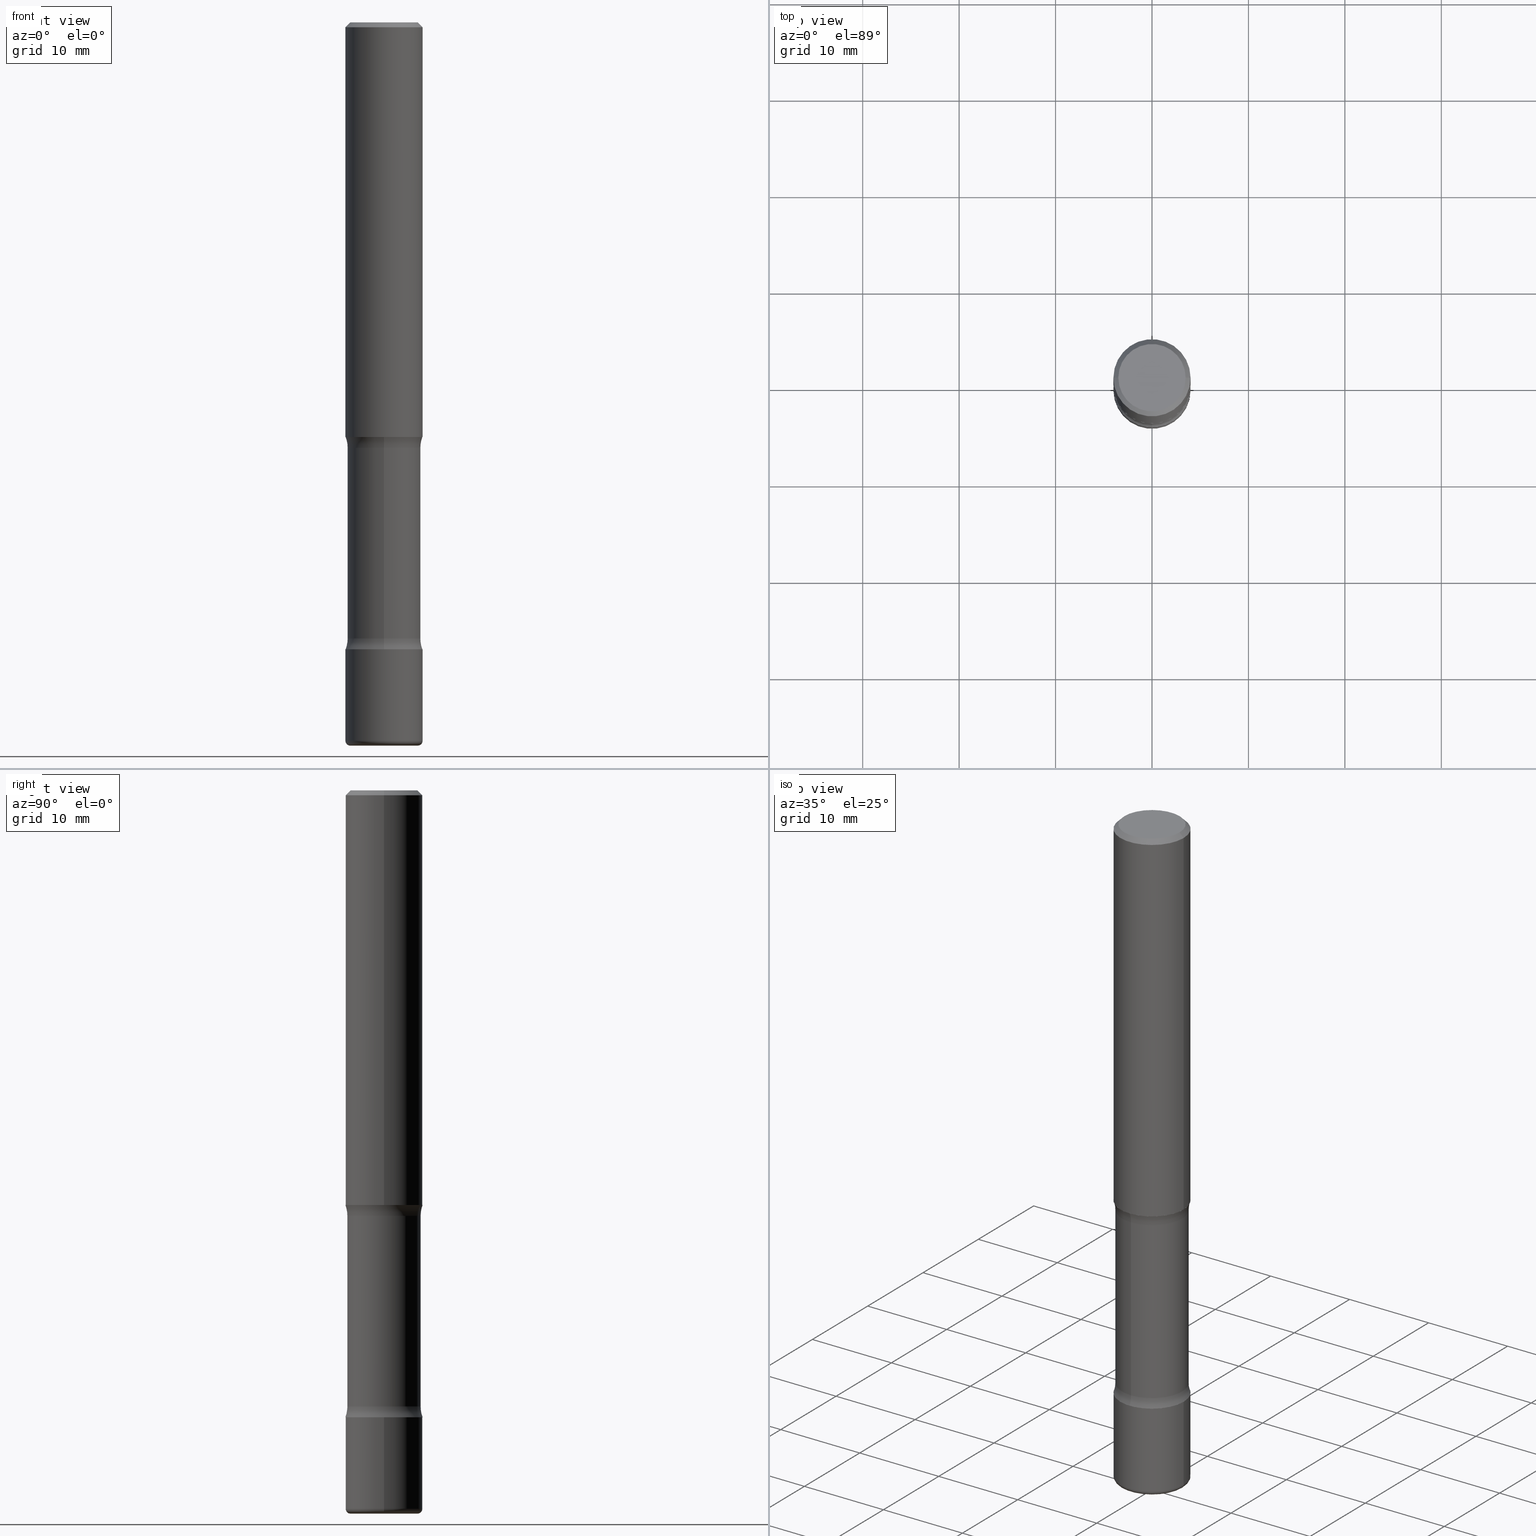
[diagram: canonical four-view strip — front | top / right | iso, engineering-drawing reading convention]
A machine part, canonical four-view strip (front | top / right | iso — engineering-drawing reading convention). The complete STEP part file that produces these views, byte-faithful:
ISO-10303-21;
HEADER;
FILE_DESCRIPTION (( 'STEP AP203' ),
    '1' );
FILE_NAME ('45128.STEP',
    '2024-03-02T04:51:14',
    ( '' ),
    ( '' ),
    'SwSTEP 2.0',
    'SolidWorks 2023',
    '' );
FILE_SCHEMA (( 'CONFIG_CONTROL_DESIGN' ));
ENDSEC;

DATA;
#1 = FACE_OUTER_BOUND ( 'NONE', #257, .T. ) ;
#2 = CARTESIAN_POINT ( 'NONE',  ( 1.099816621735650786E-15, 0.1574999999999912859, -2.559099999999999930 ) ) ;
#3 = APPROVAL ( #294, 'UNSPECIFIED' ) ;
#4 = ORIENTED_EDGE ( 'NONE', *, *, #114, .T. ) ;
#5 = EDGE_CURVE ( 'NONE', #554, #484, #64, .T. ) ;
#6 = FACE_OUTER_BOUND ( 'NONE', #8, .T. ) ;
#7 = VERTEX_POINT ( 'NONE', #22 ) ;
#8 = EDGE_LOOP ( 'NONE', ( #203, #394, #153, #265 ) ) ;
#9 = AXIS2_PLACEMENT_3D ( 'NONE', #160, #38, #344 ) ;
#10 = EDGE_LOOP ( 'NONE', ( #171, #272 ) ) ;
#11 = CYLINDRICAL_SURFACE ( 'NONE', #178, 0.1575000000000001954 ) ;
#12 = APPROVAL ( #387, 'UNSPECIFIED' ) ;
#13 = CARTESIAN_POINT ( 'NONE',  ( 4.702483345758239850E-29, -5.413541035302621061E-15, -1.737000000000000099 ) ) ;
#14 = CARTESIAN_POINT ( 'NONE',  ( 6.174935022236070014E-29, -8.746573565571573705E-15, -2.515099999999998559 ) ) ;
#15 = DATE_AND_TIME ( #400, #342 ) ;
#16 = ORIENTED_EDGE ( 'NONE', *, *, #553, .F. ) ;
#17 = AXIS2_PLACEMENT_3D ( 'NONE', #14, #269, #496 ) ;
#18 = AXIS2_PLACEMENT_3D ( 'NONE', #318, #184, #494 ) ;
#19 = ADVANCED_FACE ( 'NONE', ( #506 ), #458, .F. ) ;
#20 = CARTESIAN_POINT ( 'NONE',  ( 4.890937612370281041E-31, -6.982962677686302702E-17, -0.02000000000000003511 ) ) ;
#21 = ORIENTED_EDGE ( 'NONE', *, *, #90, .T. ) ;
#22 = CARTESIAN_POINT ( 'NONE',  ( -0.1575000000000001676, -1.871348957896993578E-15, -1.692999999999999616 ) ) ;
#23 = DIRECTION ( 'NONE',  ( -2.445468806185136597E-29, 3.491481338843145583E-15, 1.000000000000000000 ) ) ;
#24 = CARTESIAN_POINT ( 'NONE',  ( 4.700843640139236731E-29, -5.415889187075282300E-15, -1.737000000000000099 ) ) ;
#25 = CIRCLE ( 'NONE', #17, 0.1494999999999999940 ) ;
#26 = CC_DESIGN_APPROVAL ( #3, ( #301 ) ) ;
#27 = CARTESIAN_POINT ( 'NONE',  ( -0.1575000000000000844, 1.119104808822158392E-15, -7.747322767151481189E-30 ) ) ;
#28 = PLANE ( 'NONE',  #111 ) ;
#29 = CARTESIAN_POINT ( 'NONE',  ( 6.258199221908381703E-29, -8.935049894233492186E-15, -2.559099999999999486 ) ) ;
#30 = CARTESIAN_POINT ( 'NONE',  ( 0.000000000000000000, 0.000000000000000000, 0.000000000000000000 ) ) ;
#31 =( NAMED_UNIT ( * ) PLANE_ANGLE_UNIT ( ) SI_UNIT ( $, .RADIAN. ) );
#32 = LINE ( 'NONE', #379, #36 ) ;
#33 = DATE_AND_TIME ( #345, #112 ) ;
#34 = AXIS2_PLACEMENT_3D ( 'NONE', #320, #495, #465 ) ;
#35 = EDGE_LOOP ( 'NONE', ( #529, #21, #235, #82 ) ) ;
#36 = VECTOR ( 'NONE', #278, 39.37007874015748143 ) ;
#37 = ADVANCED_FACE ( 'NONE', ( #451 ), #78, .F. ) ;
#38 = DIRECTION ( 'NONE',  ( -2.445468806185136597E-29, 3.491481338843145583E-15, 1.000000000000000000 ) ) ;
#39 = PERSON_AND_ORGANIZATION_ROLE ( 'design_owner' ) ;
#40 = APPLICATION_CONTEXT ( 'configuration controlled 3d designs of mechanical parts and assemblies' ) ;
#41 = FACE_OUTER_BOUND ( 'NONE', #296, .T. ) ;
#42 = CIRCLE ( 'NONE', #326, 0.1250000000000001388 ) ;
#43 = DIRECTION ( 'NONE',  ( 1.892368174370687992E-29, -4.283552924134379994E-15, -1.000000000000000000 ) ) ;
#44 = ORIENTED_EDGE ( 'NONE', *, *, #298, .F. ) ;
#45 = CARTESIAN_POINT ( 'NONE',  ( 7.172804555421624566E-29, -1.024086391496083050E-14, -2.933100000000000041 ) ) ;
#46 = EDGE_CURVE ( 'NONE', #484, #302, #325, .T. ) ;
#47 = PLANE ( 'NONE',  #148 ) ;
#48 = ORIENTED_EDGE ( 'NONE', *, *, #266, .T. ) ;
#49 = MANIFOLD_SOLID_BREP ( 'Body-Move/Copy2[2]', #378 ) ;
#50 = APPLICATION_CONTEXT ( 'configuration controlled 3d designs of mechanical parts and assemblies' ) ;
#52 = ORIENTED_EDGE ( 'NONE', *, *, #550, .T. ) ;
#51 = CARTESIAN_POINT ( 'NONE',  ( 0.1575000000000001954, -1.003486651596908046E-14, -2.559099999999999486 ) ) ;
#53 = CARTESIAN_POINT ( 'NONE',  ( 1.043952920314158531E-15, 0.1494999999999912510, -2.515099999999999003 ) ) ;
#54 = AXIS2_PLACEMENT_3D ( 'NONE', #211, #443, #123 ) ;
#55 = CARTESIAN_POINT ( 'NONE',  ( -1.883206700388223981E-15, -0.2745000000000087925, -2.515099999999997227 ) ) ;
#56 = ADVANCED_FACE ( 'NONE', ( #370 ), #445, .F. ) ;
#57 = MANIFOLD_SOLID_BREP ( 'Body-Move/Copy2[4]', #254 ) ;
#58 = DIRECTION ( 'NONE',  ( -6.982962677686265922E-15, -1.000000000000000000, 0.000000000000000000 ) ) ;
#59 = CARTESIAN_POINT ( 'NONE',  ( 4.890937612370281041E-31, -6.982962677686302702E-17, -0.02000000000000003511 ) ) ;
#60 = APPROVAL_STATUS ( 'not_yet_approved' ) ;
#61 = LINE ( 'NONE', #175, #255 ) ;
#62 = CARTESIAN_POINT ( 'NONE',  ( 0.1575000000000000844, -1.099816621735587677E-15, 7.679978421878603638E-30 ) ) ;
#63 = ORIENTED_EDGE ( 'NONE', *, *, #83, .T. ) ;
#64 = LINE ( 'NONE', #62, #121 ) ;
#65 = CIRCLE ( 'NONE', #189, 0.1249999999999999584 ) ;
#66 = EDGE_LOOP ( 'NONE', ( #136, #391 ) ) ;
#67 = CARTESIAN_POINT ( 'NONE',  ( -1.043851414335219820E-46, 1.490343170380447200E-32, 4.268512490100411279E-18 ) ) ;
#68 = EDGE_LOOP ( 'NONE', ( #354, #96, #142, #333 ) ) ;
#69 = CARTESIAN_POINT ( 'NONE',  ( 0.1575000000000001676, -7.010894528397032856E-15, -1.692999999999999616 ) ) ;
#70 = DIRECTION ( 'NONE',  ( 1.000000000000000000, -6.982962677686265922E-15, 0.000000000000000000 ) ) ;
#71 = DIRECTION ( 'NONE',  ( -6.982962677686266711E-15, -1.000000000000000000, 3.491481338843145583E-15 ) ) ;
#72 = FACE_OUTER_BOUND ( 'NONE', #512, .T. ) ;
#73 = ADVANCED_FACE ( 'NONE', ( #533 ), #94, .T. ) ;
#74 = AXIS2_PLACEMENT_3D ( 'NONE', #238, #279, #419 ) ;
#75 = AXIS2_PLACEMENT_3D ( 'NONE', #264, #447, #117 ) ;
#76 = DIRECTION ( 'NONE',  ( 1.892368174370687992E-29, -4.283552924134379994E-15, -1.000000000000000000 ) ) ;
#77 = EDGE_CURVE ( 'NONE', #396, #88, #282, .T. ) ;
#78 = TOROIDAL_SURFACE ( 'NONE', #388, 0.2744999999999992446, 0.1249999999999999584 ) ;
#79 = TOROIDAL_SURFACE ( 'NONE', #389, 0.2745000000000000218, 0.1250000000000001388 ) ;
#80 = MECHANICAL_CONTEXT ( 'NONE', #50, 'mechanical' ) ;
#81 = LOCAL_TIME ( 23, 51, 14.00000000000000000, #113 ) ;
#82 = ORIENTED_EDGE ( 'NONE', *, *, #525, .F. ) ;
#83 = EDGE_CURVE ( 'NONE', #554, #7, #501, .T. ) ;
#84 = PERSON_AND_ORGANIZATION_ROLE ( 'creator' ) ;
#85 = AXIS2_PLACEMENT_3D ( 'NONE', #158, #480, #429 ) ;
#86 = CARTESIAN_POINT ( 'NONE',  ( -1.043851414335219820E-46, 1.490343170380447200E-32, 4.268512490100411279E-18 ) ) ;
#87 = ORIENTED_EDGE ( 'NONE', *, *, #124, .F. ) ;
#88 = VERTEX_POINT ( 'NONE', #225 ) ;
#89 = FACE_OUTER_BOUND ( 'NONE', #116, .T. ) ;
#90 = EDGE_CURVE ( 'NONE', #383, #351, #220, .T. ) ;
#91 = APPROVAL_ROLE ( '' ) ;
#92 = CARTESIAN_POINT ( 'NONE',  ( -1.883206700388233052E-15, -0.2745000000000046847, -1.736999999999998989 ) ) ;
#93 = CIRCLE ( 'NONE', #85, 0.1250000000000001388 ) ;
#94 = CYLINDRICAL_SURFACE ( 'NONE', #473, 0.1575000000000001954 ) ;
#95 = CARTESIAN_POINT ( 'NONE',  ( -0.1575000000000001954, -8.468852095775002161E-15, -2.559099999999999486 ) ) ;
#96 = ORIENTED_EDGE ( 'NONE', *, *, #287, .T. ) ;
#97 = EDGE_CURVE ( 'NONE', #351, #549, #240, .T. ) ;
#98 = DIRECTION ( 'NONE',  ( 2.445468806185136597E-29, -3.491481338843145583E-15, -1.000000000000000000 ) ) ;
#99 = DIRECTION ( 'NONE',  ( -2.445468806185136597E-29, 3.491481338843145583E-15, 1.000000000000000000 ) ) ;
#100 = CARTESIAN_POINT ( 'NONE',  ( 7.220980290903470182E-29, -1.030964609733603853E-14, -2.952799999999999869 ) ) ;
#101 = DIRECTION ( 'NONE',  ( 1.000000000000000000, -6.982962677686261977E-15, 0.000000000000000000 ) ) ;
#102 = PRODUCT_DEFINITION ( 'UNKNOWN', '', #301, #295 ) ;
#103 = PLANE ( 'NONE',  #74 ) ;
#104 = DIRECTION ( 'NONE',  ( -2.445468806185136597E-29, 3.491481338843145583E-15, 1.000000000000000000 ) ) ;
#105 = CYLINDRICAL_SURFACE ( 'NONE', #418, 0.1575000000000000844 ) ;
#106 = AXIS2_PLACEMENT_3D ( 'NONE', #86, #350, #166 ) ;
#107 = EDGE_CURVE ( 'NONE', #457, #253, #25, .T. ) ;
#108 = FACE_OUTER_BOUND ( 'NONE', #130, .T. ) ;
#109 = VERTEX_POINT ( 'NONE', #237 ) ;
#110 = CLOSED_SHELL ( 'NONE', ( #73, #233, #132, #531, #244, #338 ) ) ;
#111 = AXIS2_PLACEMENT_3D ( 'NONE', #193, #376, #547 ) ;
#112 = LOCAL_TIME ( 23, 51, 14.00000000000000000, #424 ) ;
#113 = COORDINATED_UNIVERSAL_TIME_OFFSET ( 5, 0, .BEHIND. ) ;
#114 = EDGE_CURVE ( 'NONE', #162, #457, #406, .T. ) ;
#115 = PERSON_AND_ORGANIZATION ( #290, #327 ) ;
#116 = EDGE_LOOP ( 'NONE', ( #63, #435, #407, #311 ) ) ;
#118 = ORIENTED_EDGE ( 'NONE', *, *, #441, .T. ) ;
#117 = DIRECTION ( 'NONE',  ( -1.000000000000000000, 6.982962677686265922E-15, -4.876176775795935793E-29 ) ) ;
#119 = CARTESIAN_POINT ( 'NONE',  ( -1.080528434648966278E-15, -0.1575000000000047196, -1.692999999999999172 ) ) ;
#120 = EDGE_LOOP ( 'NONE', ( #87, #210, #322, #509 ) ) ;
#121 = VECTOR ( 'NONE', #176, 39.37007874015748143 ) ;
#122 = AXIS2_PLACEMENT_3D ( 'NONE', #100, #23, #510 ) ;
#123 = DIRECTION ( 'NONE',  ( 1.000000000000000000, -6.982962677686267499E-15, 4.876176775795936353E-29 ) ) ;
#124 = EDGE_CURVE ( 'NONE', #213, #162, #312, .T. ) ;
#125 = CALENDAR_DATE ( 2024, 1, 3 ) ;
#126 = CARTESIAN_POINT ( 'NONE',  ( 1.099816621735629487E-15, 0.1574999999999942557, -1.693000000000000282 ) ) ;
#127 = CIRCLE ( 'NONE', #364, 0.01969999999999991203 ) ;
#128 = CIRCLE ( 'NONE', #341, 0.1574999999999995015 ) ;
#129 = DIRECTION ( 'NONE',  ( -1.000000000000000000, 6.982962677686265922E-15, 0.000000000000000000 ) ) ;
#130 = EDGE_LOOP ( 'NONE', ( #16, #488, #4, #449 ) ) ;
#131 = CARTESIAN_POINT ( 'NONE',  ( 4.702483345758239850E-29, -5.413541035302621061E-15, -1.737000000000000099 ) ) ;
#132 = ADVANCED_FACE ( 'NONE', ( #72 ), #103, .T. ) ;
#133 = ORIENTED_EDGE ( 'NONE', *, *, #107, .T. ) ;
#134 = SECURITY_CLASSIFICATION_LEVEL ( 'unclassified' ) ;
#135 = DIRECTION ( 'NONE',  ( 1.892368174370687992E-29, -4.283552924134379994E-15, -1.000000000000000000 ) ) ;
#136 = ORIENTED_EDGE ( 'NONE', *, *, #266, .F. ) ;
#137 = EDGE_LOOP ( 'NONE', ( #118, #462, #489, #548 ) ) ;
#138 = FACE_OUTER_BOUND ( 'NONE', #68, .T. ) ;
#139 = DIRECTION ( 'NONE',  ( 1.000000000000000000, -6.982962677686267499E-15, 4.876173381029101724E-29 ) ) ;
#140 = AXIS2_PLACEMENT_3D ( 'NONE', #24, #187, #511 ) ;
#141 = AXIS2_PLACEMENT_3D ( 'NONE', #157, #340, #339 ) ;
#142 = ORIENTED_EDGE ( 'NONE', *, *, #154, .T. ) ;
#143 = EDGE_CURVE ( 'NONE', #383, #346, #127, .T. ) ;
#144 = DIRECTION ( 'NONE',  ( -2.445468806185136877E-29, 3.491481338843145188E-15, 1.000000000000000000 ) ) ;
#145 = CARTESIAN_POINT ( 'NONE',  ( 6.174444085162320506E-29, -8.747276615403585415E-15, -2.515099999999998559 ) ) ;
#146 = ORIENTED_EDGE ( 'NONE', *, *, #227, .T. ) ;
#147 = DIRECTION ( 'NONE',  ( 6.982962677686265133E-15, 1.000000000000000000, -3.654646145370252101E-15 ) ) ;
#148 = AXIS2_PLACEMENT_3D ( 'NONE', #555, #252, #475 ) ;
#149 = CARTESIAN_POINT ( 'NONE',  ( -0.1378000000000001724, -9.261736025083411415E-15, -2.933100000000000041 ) ) ;
#150 = AXIS2_PLACEMENT_3D ( 'NONE', #29, #76, #243 ) ;
#151 = CC_DESIGN_PERSON_AND_ORGANIZATION_ASSIGNMENT ( #115, #84, ( #301 ) ) ;
#152 = DIRECTION ( 'NONE',  ( 1.000000000000000000, -6.982962677686267499E-15, 4.876176775795936353E-29 ) ) ;
#153 = ORIENTED_EDGE ( 'NONE', *, *, #518, .T. ) ;
#154 = EDGE_CURVE ( 'NONE', #253, #457, #432, .T. ) ;
#155 = CALENDAR_DATE ( 2024, 1, 3 ) ;
#156 = DIRECTION ( 'NONE',  ( 2.445468806185136597E-29, -3.491481338843145583E-15, -1.000000000000000000 ) ) ;
#157 = CARTESIAN_POINT ( 'NONE',  ( 6.258199221908381703E-29, -8.935049894233492186E-15, -2.559099999999999486 ) ) ;
#158 = CARTESIAN_POINT ( 'NONE',  ( 1.916823255024941869E-15, 0.2744999999999913065, -2.515099999999999447 ) ) ;
#159 = ADVANCED_FACE ( 'NONE', ( #421 ), #105, .T. ) ;
#160 = CARTESIAN_POINT ( 'NONE',  ( 6.258199221908381703E-29, -8.935049894233492186E-15, -2.559099999999999486 ) ) ;
#161 = APPROVAL_ROLE ( '' ) ;
#162 = VERTEX_POINT ( 'NONE', #202 ) ;
#163 = PERSON_AND_ORGANIZATION ( #290, #327 ) ;
#164 = CARTESIAN_POINT ( 'NONE',  ( 0.000000000000000000, 0.000000000000000000, 0.000000000000000000 ) ) ;
#165 = ADVANCED_FACE ( 'NONE', ( #337 ), #288, .T. ) ;
#166 = DIRECTION ( 'NONE',  ( 1.000000000000000000, -6.982962677686267499E-15, 4.876173381029101724E-29 ) ) ;
#167 = AXIS2_PLACEMENT_3D ( 'NONE', #433, #43, #228 ) ;
#168 = APPROVAL_PERSON_ORGANIZATION ( #206, #12, #557 ) ;
#169 = PRODUCT ( '45128', '45128', '', ( #80 ) ) ;
#170 = EDGE_LOOP ( 'NONE', ( #216, #544, #259, #48 ) ) ;
#171 = ORIENTED_EDGE ( 'NONE', *, *, #503, .T. ) ;
#172 = DIRECTION ( 'NONE',  ( 1.000000000000000000, -6.982962677686267499E-15, 4.876176775795935232E-29 ) ) ;
#173 = ORIENTED_EDGE ( 'NONE', *, *, #503, .F. ) ;
#174 = PERSON_AND_ORGANIZATION_ROLE ( 'classification_officer' ) ;
#175 = CARTESIAN_POINT ( 'NONE',  ( 0.1575000000000000011, -1.150358061425879275E-15, -0.02000000000000003511 ) ) ;
#176 = DIRECTION ( 'NONE',  ( -2.445468806185136877E-29, 3.491481338843145188E-15, 1.000000000000000000 ) ) ;
#177 = EDGE_CURVE ( 'NONE', #491, #109, #545, .T. ) ;
#178 = AXIS2_PLACEMENT_3D ( 'NONE', #164, #348, #172 ) ;
#179 = DIRECTION ( 'NONE',  ( -2.445468806185136597E-29, 3.491481338843145583E-15, 1.000000000000000000 ) ) ;
#180 = ORIENTED_EDGE ( 'NONE', *, *, #285, .T. ) ;
#181 = DIRECTION ( 'NONE',  ( 1.892368174370687992E-29, -4.283552924134379994E-15, -1.000000000000000000 ) ) ;
#182 = CARTESIAN_POINT ( 'NONE',  ( -0.1378000000000000891, -9.226138656798647747E-15, -2.952799999999999869 ) ) ;
#183 = DIRECTION ( 'NONE',  ( 1.892368174370687992E-29, -4.283552924134379994E-15, -1.000000000000000000 ) ) ;
#184 = DIRECTION ( 'NONE',  ( -2.445468806185136597E-29, 3.491481338843145583E-15, 1.000000000000000000 ) ) ;
#185 = EDGE_CURVE ( 'NONE', #7, #302, #250, .T. ) ;
#186 = CARTESIAN_POINT ( 'NONE',  ( -0.1575000000000001954, 1.119104808822159181E-15, -7.747322767151486794E-30 ) ) ;
#187 = DIRECTION ( 'NONE',  ( 1.892368174370687992E-29, -4.283552924134379994E-15, -1.000000000000000000 ) ) ;
#188 = AXIS2_PLACEMENT_3D ( 'NONE', #59, #179, #231 ) ;
#189 = AXIS2_PLACEMENT_3D ( 'NONE', #524, #442, #58 ) ;
#190 = CC_DESIGN_APPROVAL ( #214, ( #483 ) ) ;
#191 = CARTESIAN_POINT ( 'NONE',  ( 7.003224572158122372E-29, -1.062148468046519830E-14, -2.952799999999999869 ) ) ;
#192 = ADVANCED_BREP_SHAPE_REPRESENTATION ( '45128', ( #426, #49, #57, #546 ), #336 ) ;
#193 = CARTESIAN_POINT ( 'NONE',  ( 4.140178688871434900E-29, -5.911077906661444587E-15, -1.692999999999999616 ) ) ;
#194 = CC_DESIGN_DATE_AND_TIME_ASSIGNMENT ( #314, #232, ( #483 ) ) ;
#195 = ADVANCED_FACE ( 'NONE', ( #108 ), #286, .T. ) ;
#196 = AXIS2_PLACEMENT_3D ( 'NONE', #513, #104, #507 ) ;
#197 = PERSON_AND_ORGANIZATION_ROLE ( 'design_supplier' ) ;
#198 = APPROVAL_PERSON_ORGANIZATION ( #270, #214, #91 ) ;
#199 = ORIENTED_EDGE ( 'NONE', *, *, #273, .T. ) ;
#200 = APPLICATION_PROTOCOL_DEFINITION ( 'international standard', 'config_control_design', 1994, #50 ) ;
#201 = CC_DESIGN_DATE_AND_TIME_ASSIGNMENT ( #385, #430, ( #102 ) ) ;
#202 = CARTESIAN_POINT ( 'NONE',  ( 1.043952920314138809E-15, 0.1494999999999938878, -1.737000000000000544 ) ) ;
#203 = ORIENTED_EDGE ( 'NONE', *, *, #285, .F. ) ;
#204 = FACE_OUTER_BOUND ( 'NONE', #224, .T. ) ;
#205 = EDGE_CURVE ( 'NONE', #528, #305, #283, .T. ) ;
#206 = PERSON_AND_ORGANIZATION ( #290, #327 ) ;
#207 = DIRECTION ( 'NONE',  ( 6.982962677686265133E-15, 1.000000000000000000, -3.654646145370260778E-15 ) ) ;
#208 = VECTOR ( 'NONE', #538, 39.37007874015748143 ) ;
#209 = AXIS2_PLACEMENT_3D ( 'NONE', #191, #428, #516 ) ;
#210 = ORIENTED_EDGE ( 'NONE', *, *, #347, .T. ) ;
#211 = CARTESIAN_POINT ( 'NONE',  ( 0.000000000000000000, 0.000000000000000000, 0.000000000000000000 ) ) ;
#212 = PERSON_AND_ORGANIZATION ( #290, #327 ) ;
#213 = VERTEX_POINT ( 'NONE', #256 ) ;
#214 = APPROVAL ( #60, 'UNSPECIFIED' ) ;
#215 = DIRECTION ( 'NONE',  ( -2.445468806185136597E-29, 3.491481338843145583E-15, 1.000000000000000000 ) ) ;
#216 = ORIENTED_EDGE ( 'NONE', *, *, #347, .F. ) ;
#217 = DIRECTION ( 'NONE',  ( 1.000000000000000000, -6.860497997771530774E-15, 4.831098800307917727E-29 ) ) ;
#218 = CARTESIAN_POINT ( 'NONE',  ( 7.003224572158122372E-29, -1.062148468046519830E-14, -2.952799999999999869 ) ) ;
#219 = ORIENTED_EDGE ( 'NONE', *, *, #83, .F. ) ;
#220 = CIRCLE ( 'NONE', #542, 0.1378000000000000891 ) ;
#221 = CIRCLE ( 'NONE', #502, 0.1494999999999993001 ) ;
#222 = COORDINATED_UNIVERSAL_TIME_OFFSET ( 5, 0, .BEHIND. ) ;
#223 = CIRCLE ( 'NONE', #150, 0.1575000000000001954 ) ;
#224 = EDGE_LOOP ( 'NONE', ( #229, #52 ) ) ;
#225 = CARTESIAN_POINT ( 'NONE',  ( -0.1374999999999999556, 9.950721815702927302E-16, 4.268512490093574228E-18 ) ) ;
#226 = ORIENTED_EDGE ( 'NONE', *, *, #46, .T. ) ;
#227 = EDGE_CURVE ( 'NONE', #7, #554, #446, .T. ) ;
#228 = DIRECTION ( 'NONE',  ( 6.982962677686266711E-15, 1.000000000000000000, -3.469013325287964337E-15 ) ) ;
#229 = ORIENTED_EDGE ( 'NONE', *, *, #177, .T. ) ;
#230 = CIRCLE ( 'NONE', #167, 0.1574999999999995015 ) ;
#231 = DIRECTION ( 'NONE',  ( 1.000000000000000000, -6.982962677686265922E-15, 0.000000000000000000 ) ) ;
#232 = DATE_TIME_ROLE ( 'classification_date' ) ;
#233 = ADVANCED_FACE ( 'NONE', ( #401 ), #365, .T. ) ;
#234 = DIRECTION ( 'NONE',  ( -2.445468806185136597E-29, 3.491481338843145583E-15, 1.000000000000000000 ) ) ;
#235 = ORIENTED_EDGE ( 'NONE', *, *, #97, .T. ) ;
#236 = CARTESIAN_POINT ( 'NONE',  ( 0.000000000000000000, 0.000000000000000000, 0.000000000000000000 ) ) ;
#237 = CARTESIAN_POINT ( 'NONE',  ( -1.080528434648955234E-15, -0.1575000000000091882, -2.559099999999999042 ) ) ;
#238 = CARTESIAN_POINT ( 'NONE',  ( 7.220980290903470182E-29, -1.030964609733603853E-14, -2.952799999999999869 ) ) ;
#239 = CARTESIAN_POINT ( 'NONE',  ( 0.1575000000000001676, -1.134068053669641877E-14, -2.933100000000000041 ) ) ;
#240 = CIRCLE ( 'NONE', #262, 0.01969999999999991203 ) ;
#241 = CIRCLE ( 'NONE', #552, 0.1575000000000000011 ) ;
#242 = LOCAL_TIME ( 23, 51, 14.00000000000000000, #487 ) ;
#243 = DIRECTION ( 'NONE',  ( 6.982962677686265922E-15, 1.000000000000000000, -3.469013325287948955E-15 ) ) ;
#244 = ADVANCED_FACE ( 'NONE', ( #6 ), #11, .T. ) ;
#245 = CARTESIAN_POINT ( 'NONE',  ( 4.140178688871434900E-29, -5.911077906661444587E-15, -1.692999999999999616 ) ) ;
#246 = AXIS2_PLACEMENT_3D ( 'NONE', #329, #99, #275 ) ;
#247 = CONICAL_SURFACE ( 'NONE', #284, 0.1575000000000000011, 0.7853981633974479459 ) ;
#248 = EDGE_CURVE ( 'NONE', #162, #321, #65, .T. ) ;
#249 = UNCERTAINTY_MEASURE_WITH_UNIT (LENGTH_MEASURE( 1.000000000000000082E-05 ), #504, 'distance_accuracy_value', 'NONE');
#250 = LINE ( 'NONE', #27, #408 ) ;
#251 = ORIENTED_EDGE ( 'NONE', *, *, #273, .F. ) ;
#252 = DIRECTION ( 'NONE',  ( -1.892368174370687712E-29, 4.283552924134379994E-15, 1.000000000000000000 ) ) ;
#253 = VERTEX_POINT ( 'NONE', #532 ) ;
#254 = CLOSED_SHELL ( 'NONE', ( #515, #397, #37, #56, #375, #472, #19, #195 ) ) ;
#255 = VECTOR ( 'NONE', #500, 39.37007874015748143 ) ;
#256 = CARTESIAN_POINT ( 'NONE',  ( -1.053086442657879041E-15, -0.1495000000000047125, -1.736999999999999433 ) ) ;
#257 = EDGE_LOOP ( 'NONE', ( #467, #466 ) ) ;
#258 = EDGE_CURVE ( 'NONE', #508, #321, #230, .T. ) ;
#259 = ORIENTED_EDGE ( 'NONE', *, *, #248, .T. ) ;
#260 = CYLINDRICAL_SURFACE ( 'NONE', #434, 0.1494999999999996332 ) ;
#261 = PRODUCT_DEFINITION_SHAPE ( 'NONE', 'NONE',  #102 ) ;
#262 = AXIS2_PLACEMENT_3D ( 'NONE', #276, #71, #367 ) ;
#263 = CIRCLE ( 'NONE', #313, 0.1575000000000001954 ) ;
#264 = CARTESIAN_POINT ( 'NONE',  ( 6.258199221908381703E-29, -8.935049894233492186E-15, -2.559099999999999486 ) ) ;
#265 = ORIENTED_EDGE ( 'NONE', *, *, #205, .F. ) ;
#266 = EDGE_CURVE ( 'NONE', #321, #508, #128, .T. ) ;
#267 = ORIENTED_EDGE ( 'NONE', *, *, #357, .T. ) ;
#268 = CARTESIAN_POINT ( 'NONE',  ( 6.258199221908381703E-29, -8.935049894233492186E-15, -2.559099999999999486 ) ) ;
#269 = DIRECTION ( 'NONE',  ( 1.892368174370687992E-29, -4.283552924134379994E-15, -1.000000000000000000 ) ) ;
#270 = PERSON_AND_ORGANIZATION ( #290, #327 ) ;
#271 = DIRECTION ( 'NONE',  ( 1.892368174370687992E-29, -4.283552924134379994E-15, -1.000000000000000000 ) ) ;
#272 = ORIENTED_EDGE ( 'NONE', *, *, #77, .T. ) ;
#273 = EDGE_CURVE ( 'NONE', #396, #484, #61, .T. ) ;
#274 = AXIS2_PLACEMENT_3D ( 'NONE', #245, #469, #423 ) ;
#275 = DIRECTION ( 'NONE',  ( 1.000000000000000000, -6.982962677686267499E-15, 0.000000000000000000 ) ) ;
#276 = CARTESIAN_POINT ( 'NONE',  ( 0.1378000000000001724, -1.120311617194599955E-14, -2.933100000000000041 ) ) ;
#277 = ORIENTED_EDGE ( 'NONE', *, *, #453, .F. ) ;
#278 = DIRECTION ( 'NONE',  ( 1.892368174370687992E-29, -4.283552924134379994E-15, -1.000000000000000000 ) ) ;
#279 = DIRECTION ( 'NONE',  ( 2.438088387897960049E-29, -3.491481338843145188E-15, -1.000000000000000000 ) ) ;
#280 = PLANE ( 'NONE',  #274 ) ;
#281 = CARTESIAN_POINT ( 'NONE',  ( 4.890937612370281041E-31, -6.982962677686302702E-17, -0.02000000000000003511 ) ) ;
#282 = CIRCLE ( 'NONE', #534, 0.1374999999999999556 ) ;
#283 = CIRCLE ( 'NONE', #9, 0.1575000000000001954 ) ;
#284 = AXIS2_PLACEMENT_3D ( 'NONE', #20, #98, #129 ) ;
#285 = EDGE_CURVE ( 'NONE', #346, #528, #414, .T. ) ;
#286 = CYLINDRICAL_SURFACE ( 'NONE', #209, 0.1494999999999996332 ) ;
#287 = EDGE_CURVE ( 'NONE', #109, #253, #42, .T. ) ;
#288 = CONICAL_SURFACE ( 'NONE', #474, 0.1575000000000000011, 0.7853981633974479459 ) ;
#289 = EDGE_LOOP ( 'NONE', ( #526, #180, #277, #493 ) ) ;
#290 = PERSON ( 'UNSPECIFIED', 'UNSPECIFIED', 'UNSPECIFIED', ('UNSPECIFIED'), ('UNSPECIFIED'), ('UNSPECIFIED') ) ;
#291 = ORIENTED_EDGE ( 'NONE', *, *, #114, .F. ) ;
#292 = APPROVAL_DATE_TIME ( #522, #12 ) ;
#293 = CARTESIAN_POINT ( 'NONE',  ( 0.1575000000000001954, -1.099816621735588466E-15, 7.679978421878607842E-30 ) ) ;
#294 = APPROVAL_STATUS ( 'not_yet_approved' ) ;
#295 = DESIGN_CONTEXT ( 'detailed design', #40, 'design' ) ;
#296 = EDGE_LOOP ( 'NONE', ( #267, #368, #444, #291 ) ) ;
#297 = DIRECTION ( 'NONE',  ( 1.892368174370687992E-29, -4.283552924134379994E-15, -1.000000000000000000 ) ) ;
#298 = EDGE_CURVE ( 'NONE', #88, #302, #360, .T. ) ;
#299 = ORIENTED_EDGE ( 'NONE', *, *, #298, .T. ) ;
#300 = AXIS2_PLACEMENT_3D ( 'NONE', #308, #438, #490 ) ;
#301 = PRODUCT_DEFINITION_FORMATION_WITH_SPECIFIED_SOURCE ( 'ANY', '', #169, .NOT_KNOWN. ) ;
#302 = VERTEX_POINT ( 'NONE', #527 ) ;
#303 = DIRECTION ( 'NONE',  ( 0.000000000000000000, 0.000000000000000000, 1.000000000000000000 ) ) ;
#305 = VERTEX_POINT ( 'NONE', #51 ) ;
#304 = CARTESIAN_POINT ( 'NONE',  ( -0.1575000000000001676, -9.121759106138672895E-15, -2.933100000000000041 ) ) ;
#306 = EDGE_LOOP ( 'NONE', ( #478, #497, #404, #133 ) ) ;
#307 = CC_DESIGN_PERSON_AND_ORGANIZATION_ASSIGNMENT ( #163, #39, ( #169 ) ) ;
#308 = CARTESIAN_POINT ( 'NONE',  ( 4.140178688871434900E-29, -5.911077906661444587E-15, -1.692999999999999616 ) ) ;
#309 = PLANE ( 'NONE',  #75 ) ;
#310 = EDGE_LOOP ( 'NONE', ( #440, #199, #226, #44 ) ) ;
#311 = ORIENTED_EDGE ( 'NONE', *, *, #5, .F. ) ;
#312 = CIRCLE ( 'NONE', #470, 0.1494999999999993001 ) ;
#313 = AXIS2_PLACEMENT_3D ( 'NONE', #45, #215, #486 ) ;
#314 = DATE_AND_TIME ( #125, #460 ) ;
#315 = CARTESIAN_POINT ( 'NONE',  ( 7.172804555421624566E-29, -1.024086391496083050E-14, -2.933100000000000041 ) ) ;
#316 = DIRECTION ( 'NONE',  ( -2.445468806185136597E-29, 3.491481338843145583E-15, 1.000000000000000000 ) ) ;
#317 = DIRECTION ( 'NONE',  ( -2.445468806185136597E-29, 3.491481338843145583E-15, 1.000000000000000000 ) ) ;
#318 = CARTESIAN_POINT ( 'NONE',  ( 7.172804555421624566E-29, -1.024086391496083050E-14, -2.933100000000000041 ) ) ;
#319 = CARTESIAN_POINT ( 'NONE',  ( 4.619219146085929282E-29, -5.225064706640705735E-15, -1.692999999999999616 ) ) ;
#320 = CARTESIAN_POINT ( 'NONE',  ( 9.601573681818612783E-16, 0.1374999999999999556, -4.779444278458822007E-16 ) ) ;
#321 = VERTEX_POINT ( 'NONE', #126 ) ;
#322 = ORIENTED_EDGE ( 'NONE', *, *, #258, .T. ) ;
#323 = DIRECTION ( 'NONE',  ( 1.000000000000000000, -6.982962677686267499E-15, 4.876176775795935232E-29 ) ) ;
#324 = LENGTH_MEASURE_WITH_UNIT ( LENGTH_MEASURE( 0.02539999999999999897 ), #412 );
#325 = CIRCLE ( 'NONE', #188, 0.1575000000000000011 ) ;
#326 = AXIS2_PLACEMENT_3D ( 'NONE', #55, #349, #355 ) ;
#327 = ORGANIZATION ( 'UNSPECIFIED', 'UNSPECIFIED', '' ) ;
#328 = DIRECTION ( 'NONE',  ( 6.982962677686265922E-15, 1.000000000000000000, -4.283552924134379994E-15 ) ) ;
#329 = CARTESIAN_POINT ( 'NONE',  ( 4.140178688871434900E-29, -5.911077906661444587E-15, -1.692999999999999616 ) ) ;
#330 = DIRECTION ( 'NONE',  ( 1.892368174370687992E-29, -4.283552924134379994E-15, -1.000000000000000000 ) ) ;
#331 = DIRECTION ( 'NONE',  ( -1.000000000000000000, 7.105427357600959260E-15, 0.000000000000000000 ) ) ;
#332 = ADVANCED_FACE ( 'NONE', ( #89 ), #353, .T. ) ;
#333 = ORIENTED_EDGE ( 'NONE', *, *, #485, .F. ) ;
#334 = AXIS2_PLACEMENT_3D ( 'NONE', #471, #377, #147 ) ;
#335 = TOROIDAL_SURFACE ( 'NONE', #196, 0.1378000000000001724, 0.01969999999999990509 ) ;
#336 =( GEOMETRIC_REPRESENTATION_CONTEXT ( 3 ) GLOBAL_UNCERTAINTY_ASSIGNED_CONTEXT ( ( #249 ) ) GLOBAL_UNIT_ASSIGNED_CONTEXT ( ( #504, #31, #463 ) ) REPRESENTATION_CONTEXT ( 'NONE', 'WORKASPACE' ) );
#337 = FACE_OUTER_BOUND ( 'NONE', #310, .T. ) ;
#338 = ADVANCED_FACE ( 'NONE', ( #1 ), #309, .F. ) ;
#339 = DIRECTION ( 'NONE',  ( 6.982962677686265922E-15, 1.000000000000000000, -3.469013325287948955E-15 ) ) ;
#340 = DIRECTION ( 'NONE',  ( 1.892368174370687992E-29, -4.283552924134379994E-15, -1.000000000000000000 ) ) ;
#341 = AXIS2_PLACEMENT_3D ( 'NONE', #319, #181, #359 ) ;
#342 = LOCAL_TIME ( 23, 51, 14.00000000000000000, #222 ) ;
#343 = PRODUCT_RELATED_PRODUCT_CATEGORY ( 'detail', '', ( #169 ) ) ;
#344 = DIRECTION ( 'NONE',  ( 1.000000000000000000, -6.982962677686265922E-15, 0.000000000000000000 ) ) ;
#345 = CALENDAR_DATE ( 2024, 1, 3 ) ;
#346 = VERTEX_POINT ( 'NONE', #304 ) ;
#347 = EDGE_CURVE ( 'NONE', #213, #508, #492, .T. ) ;
#348 = DIRECTION ( 'NONE',  ( -2.445468806185136597E-29, 3.491481338843145583E-15, 1.000000000000000000 ) ) ;
#349 = DIRECTION ( 'NONE',  ( 1.000000000000000000, -6.860497997771530774E-15, 4.831098800307917727E-29 ) ) ;
#350 = DIRECTION ( 'NONE',  ( -2.445468806185136597E-29, 3.491481338843145583E-15, 1.000000000000000000 ) ) ;
#351 = VERTEX_POINT ( 'NONE', #403 ) ;
#352 = CALENDAR_DATE ( 2024, 1, 3 ) ;
#353 = CYLINDRICAL_SURFACE ( 'NONE', #54, 0.1575000000000000844 ) ;
#354 = ORIENTED_EDGE ( 'NONE', *, *, #550, .F. ) ;
#355 = DIRECTION ( 'NONE',  ( 6.860497997771530774E-15, 1.000000000000000000, 0.000000000000000000 ) ) ;
#356 = EDGE_LOOP ( 'NONE', ( #411, #146, #439, #452 ) ) ;
#357 = EDGE_CURVE ( 'NONE', #162, #213, #221, .T. ) ;
#358 = COORDINATED_UNIVERSAL_TIME_OFFSET ( 5, 0, .BEHIND. ) ;
#359 = DIRECTION ( 'NONE',  ( 6.982962677686266711E-15, 1.000000000000000000, -3.469013325287964337E-15 ) ) ;
#360 = LINE ( 'NONE', #530, #380 ) ;
#361 = EDGE_LOOP ( 'NONE', ( #251, #173, #299, #556 ) ) ;
#362 = DIRECTION ( 'NONE',  ( -2.445468806185136597E-29, 3.491481338843145583E-15, 1.000000000000000000 ) ) ;
#363 = DIRECTION ( 'NONE',  ( 1.892368174370687992E-29, -4.283552924134379994E-15, -1.000000000000000000 ) ) ;
#364 = AXIS2_PLACEMENT_3D ( 'NONE', #149, #382, #331 ) ;
#365 = TOROIDAL_SURFACE ( 'NONE', #425, 0.1378000000000001724, 0.01969999999999990509 ) ;
#366 = FACE_OUTER_BOUND ( 'NONE', #10, .T. ) ;
#367 = DIRECTION ( 'NONE',  ( 1.000000000000000000, -6.982962677686260400E-15, 0.000000000000000000 ) ) ;
#368 = ORIENTED_EDGE ( 'NONE', *, *, #553, .T. ) ;
#369 = CARTESIAN_POINT ( 'NONE',  ( 0.1374999999999999556, -1.046838268059732294E-15, 4.268512490107428597E-18 ) ) ;
#370 = FACE_OUTER_BOUND ( 'NONE', #170, .T. ) ;
#371 = ADVANCED_FACE ( 'NONE', ( #366 ), #537, .F. ) ;
#372 = DIRECTION ( 'NONE',  ( 6.982962677686265922E-15, 1.000000000000000000, -4.283552924134379994E-15 ) ) ;
#373 = AXIS2_PLACEMENT_3D ( 'NONE', #92, #217, #395 ) ;
#374 = CARTESIAN_POINT ( 'NONE',  ( 6.174444085162320506E-29, -8.747276615403585415E-15, -2.515099999999998559 ) ) ;
#375 = ADVANCED_FACE ( 'NONE', ( #455 ), #28, .F. ) ;
#376 = DIRECTION ( 'NONE',  ( 1.892368174370687712E-29, -4.283552924134379994E-15, -1.000000000000000000 ) ) ;
#377 = DIRECTION ( 'NONE',  ( 1.892368174370687992E-29, -4.283552924134379994E-15, -1.000000000000000000 ) ) ;
#378 = CLOSED_SHELL ( 'NONE', ( #332, #165, #381, #371, #541, #159 ) ) ;
#379 = CARTESIAN_POINT ( 'NONE',  ( -1.025644450666771294E-15, -0.1495000000000102358, -2.952799999999998981 ) ) ;
#380 = VECTOR ( 'NONE', #390, 39.37007874015748143 ) ;
#381 = ADVANCED_FACE ( 'NONE', ( #410 ), #247, .T. ) ;
#382 = DIRECTION ( 'NONE',  ( 7.105427357601001859E-15, 1.000000000000000000, -3.491481338843145583E-15 ) ) ;
#383 = VERTEX_POINT ( 'NONE', #182 ) ;
#384 = CARTESIAN_POINT ( 'NONE',  ( 0.1575000000000000011, -1.150358061425879275E-15, -0.02000000000000003511 ) ) ;
#385 = DATE_AND_TIME ( #155, #242 ) ;
#386 = CC_DESIGN_PERSON_AND_ORGANIZATION_ASSIGNMENT ( #212, #197, ( #301 ) ) ;
#387 = APPROVAL_STATUS ( 'not_yet_approved' ) ;
#388 = AXIS2_PLACEMENT_3D ( 'NONE', #456, #183, #413 ) ;
#389 = AXIS2_PLACEMENT_3D ( 'NONE', #145, #135, #328 ) ;
#391 = ORIENTED_EDGE ( 'NONE', *, *, #258, .F. ) ;
#390 = DIRECTION ( 'NONE',  ( -0.7071067811865472397, 2.468850131082253905E-15, -0.7071067811865477948 ) ) ;
#392 = APPLICATION_PROTOCOL_DEFINITION ( 'international standard', 'config_control_design', 1994, #40 ) ;
#393 = DIRECTION ( 'NONE',  ( 1.000000000000000000, -6.982962677686269866E-15, 4.883557194083114022E-29 ) ) ;
#394 = ORIENTED_EDGE ( 'NONE', *, *, #525, .T. ) ;
#396 = VERTEX_POINT ( 'NONE', #369 ) ;
#395 = DIRECTION ( 'NONE',  ( 6.860497997771531562E-15, 1.000000000000000000, 0.000000000000000000 ) ) ;
#397 = ADVANCED_FACE ( 'NONE', ( #138 ), #79, .F. ) ;
#398 = AXIS2_PLACEMENT_3D ( 'NONE', #268, #450, #427 ) ;
#399 = EDGE_LOOP ( 'NONE', ( #219, #437 ) ) ;
#400 = CALENDAR_DATE ( 2024, 1, 3 ) ;
#401 = FACE_OUTER_BOUND ( 'NONE', #137, .T. ) ;
#402 = ORIENTED_EDGE ( 'NONE', *, *, #90, .F. ) ;
#403 = CARTESIAN_POINT ( 'NONE',  ( 0.1378000000000000891, -1.127189835432120600E-14, -2.952799999999999869 ) ) ;
#404 = ORIENTED_EDGE ( 'NONE', *, *, #485, .T. ) ;
#405 = PERSON_AND_ORGANIZATION_ROLE ( 'creator' ) ;
#406 = LINE ( 'NONE', #415, #208 ) ;
#407 = ORIENTED_EDGE ( 'NONE', *, *, #46, .F. ) ;
#408 = VECTOR ( 'NONE', #517, 39.37007874015748143 ) ;
#409 = SHAPE_DEFINITION_REPRESENTATION ( #261, #192 ) ;
#410 = FACE_OUTER_BOUND ( 'NONE', #361, .T. ) ;
#411 = ORIENTED_EDGE ( 'NONE', *, *, #185, .F. ) ;
#412 =( LENGTH_UNIT ( ) NAMED_UNIT ( * ) SI_UNIT ( $, .METRE. ) );
#413 = DIRECTION ( 'NONE',  ( 6.982962677686265922E-15, 1.000000000000000000, -4.283552924134379994E-15 ) ) ;
#414 = LINE ( 'NONE', #186, #536 ) ;
#415 = CARTESIAN_POINT ( 'NONE',  ( 1.043952920314164053E-15, 0.1494999999999890028, -2.952800000000000313 ) ) ;
#416 = FACE_OUTER_BOUND ( 'NONE', #399, .T. ) ;
#417 = EDGE_CURVE ( 'NONE', #302, #484, #241, .T. ) ;
#418 = AXIS2_PLACEMENT_3D ( 'NONE', #30, #551, #152 ) ;
#419 = DIRECTION ( 'NONE',  ( -1.000000000000000000, 6.982962677686265922E-15, -4.876176775795935793E-29 ) ) ;
#420 = FACE_OUTER_BOUND ( 'NONE', #35, .T. ) ;
#421 = FACE_OUTER_BOUND ( 'NONE', #356, .T. ) ;
#422 = CC_DESIGN_PERSON_AND_ORGANIZATION_ASSIGNMENT ( #498, #174, ( #483 ) ) ;
#423 = DIRECTION ( 'NONE',  ( 1.000000000000000000, -6.982962677686265922E-15, 4.876176775795935793E-29 ) ) ;
#424 = COORDINATED_UNIVERSAL_TIME_OFFSET ( 5, 0, .BEHIND. ) ;
#425 = AXIS2_PLACEMENT_3D ( 'NONE', #315, #362, #393 ) ;
#426 = MANIFOLD_SOLID_BREP ( 'Body-Move/Copy2[1]', #110 ) ;
#427 = DIRECTION ( 'NONE',  ( 1.000000000000000000, -6.982962677686265922E-15, 0.000000000000000000 ) ) ;
#428 = DIRECTION ( 'NONE',  ( 1.892368174370687992E-29, -4.283552924134379994E-15, -1.000000000000000000 ) ) ;
#429 = DIRECTION ( 'NONE',  ( -6.982962677686265922E-15, -1.000000000000000000, 0.000000000000000000 ) ) ;
#430 = DATE_TIME_ROLE ( 'creation_date' ) ;
#431 = PERSON_AND_ORGANIZATION ( #290, #327 ) ;
#432 = CIRCLE ( 'NONE', #334, 0.1494999999999999940 ) ;
#433 = CARTESIAN_POINT ( 'NONE',  ( 4.619219146085929282E-29, -5.225064706640705735E-15, -1.692999999999999616 ) ) ;
#434 = AXIS2_PLACEMENT_3D ( 'NONE', #218, #297, #207 ) ;
#435 = ORIENTED_EDGE ( 'NONE', *, *, #185, .T. ) ;
#436 = APPROVAL_PERSON_ORGANIZATION ( #560, #3, #161 ) ;
#437 = ORIENTED_EDGE ( 'NONE', *, *, #227, .F. ) ;
#438 = DIRECTION ( 'NONE',  ( -2.445468806185136597E-29, 3.491481338843145583E-15, 1.000000000000000000 ) ) ;
#439 = ORIENTED_EDGE ( 'NONE', *, *, #5, .T. ) ;
#440 = ORIENTED_EDGE ( 'NONE', *, *, #77, .F. ) ;
#441 = EDGE_CURVE ( 'NONE', #351, #383, #519, .T. ) ;
#442 = DIRECTION ( 'NONE',  ( -1.000000000000000000, 6.982962677686265922E-15, -4.883557194083112340E-29 ) ) ;
#444 = ORIENTED_EDGE ( 'NONE', *, *, #107, .F. ) ;
#443 = DIRECTION ( 'NONE',  ( -2.445468806185136597E-29, 3.491481338843145583E-15, 1.000000000000000000 ) ) ;
#445 = TOROIDAL_SURFACE ( 'NONE', #140, 0.2744999999999992446, 0.1249999999999999584 ) ;
#446 = CIRCLE ( 'NONE', #300, 0.1575000000000001676 ) ;
#447 = DIRECTION ( 'NONE',  ( 2.438088387897960049E-29, -3.491481338843145188E-15, -1.000000000000000000 ) ) ;
#448 = DIRECTION ( 'NONE',  ( -2.445468806185136597E-29, 3.491481338843145583E-15, 1.000000000000000000 ) ) ;
#449 = ORIENTED_EDGE ( 'NONE', *, *, #154, .F. ) ;
#450 = DIRECTION ( 'NONE',  ( -2.445468806185136597E-29, 3.491481338843145583E-15, 1.000000000000000000 ) ) ;
#451 = FACE_OUTER_BOUND ( 'NONE', #120, .T. ) ;
#452 = ORIENTED_EDGE ( 'NONE', *, *, #417, .F. ) ;
#453 = EDGE_CURVE ( 'NONE', #305, #528, #459, .T. ) ;
#454 = APPROVAL_DATE_TIME ( #15, #214 ) ;
#455 = FACE_OUTER_BOUND ( 'NONE', #66, .T. ) ;
#456 = CARTESIAN_POINT ( 'NONE',  ( 4.700843640139236731E-29, -5.415889187075282300E-15, -1.737000000000000099 ) ) ;
#457 = VERTEX_POINT ( 'NONE', #53 ) ;
#458 = TOROIDAL_SURFACE ( 'NONE', #523, 0.2745000000000000218, 0.1250000000000001388 ) ;
#459 = CIRCLE ( 'NONE', #398, 0.1575000000000001954 ) ;
#460 = LOCAL_TIME ( 23, 51, 14.00000000000000000, #358 ) ;
#461 = CARTESIAN_POINT ( 'NONE',  ( 7.220980290903470182E-29, -1.030964609733603853E-14, -2.952799999999999869 ) ) ;
#462 = ORIENTED_EDGE ( 'NONE', *, *, #143, .T. ) ;
#463 =( NAMED_UNIT ( * ) SI_UNIT ( $, .STERADIAN. ) SOLID_ANGLE_UNIT ( ) );
#464 = EDGE_CURVE ( 'NONE', #549, #346, #263, .T. ) ;
#465 = DIRECTION ( 'NONE',  ( -1.000000000000000000, 6.982962677686265922E-15, -4.876176775795935793E-29 ) ) ;
#466 = ORIENTED_EDGE ( 'NONE', *, *, #205, .T. ) ;
#467 = ORIENTED_EDGE ( 'NONE', *, *, #453, .T. ) ;
#468 = DIRECTION ( 'NONE',  ( 6.982962677686264344E-15, 1.000000000000000000, -3.654646145370268667E-15 ) ) ;
#469 = DIRECTION ( 'NONE',  ( -2.438088387897960049E-29, 3.491481338843145188E-15, 1.000000000000000000 ) ) ;
#470 = AXIS2_PLACEMENT_3D ( 'NONE', #131, #271, #468 ) ;
#471 = CARTESIAN_POINT ( 'NONE',  ( 6.174935022236070014E-29, -8.746573565571573705E-15, -2.515099999999998559 ) ) ;
#472 = ADVANCED_FACE ( 'NONE', ( #204 ), #47, .F. ) ;
#473 = AXIS2_PLACEMENT_3D ( 'NONE', #540, #317, #323 ) ;
#474 = AXIS2_PLACEMENT_3D ( 'NONE', #281, #156, #476 ) ;
#475 = DIRECTION ( 'NONE',  ( -6.982962677686265922E-15, -1.000000000000000000, 4.283552924134379994E-15 ) ) ;
#476 = DIRECTION ( 'NONE',  ( -1.000000000000000000, 6.982962677686265922E-15, 0.000000000000000000 ) ) ;
#477 = CC_DESIGN_PERSON_AND_ORGANIZATION_ASSIGNMENT ( #431, #405, ( #102 ) ) ;
#478 = ORIENTED_EDGE ( 'NONE', *, *, #287, .F. ) ;
#479 = DIRECTION ( 'NONE',  ( 6.982962677686264344E-15, 1.000000000000000000, -3.654646145370268667E-15 ) ) ;
#480 = DIRECTION ( 'NONE',  ( -1.000000000000000000, 6.982962677686265922E-15, -4.883557194083112340E-29 ) ) ;
#481 = DIRECTION ( 'NONE',  ( 1.000000000000000000, 0.000000000000000000, 0.000000000000000000 ) ) ;
#482 = DIRECTION ( 'NONE',  ( -2.445468806185136877E-29, 3.491481338843145188E-15, 1.000000000000000000 ) ) ;
#483 = SECURITY_CLASSIFICATION ( '', '', #134 ) ;
#484 = VERTEX_POINT ( 'NONE', #384 ) ;
#485 = EDGE_CURVE ( 'NONE', #491, #457, #93, .T. ) ;
#486 = DIRECTION ( 'NONE',  ( 1.000000000000000000, -6.982962677686265922E-15, 0.000000000000000000 ) ) ;
#487 = COORDINATED_UNIVERSAL_TIME_OFFSET ( 5, 0, .BEHIND. ) ;
#488 = ORIENTED_EDGE ( 'NONE', *, *, #124, .T. ) ;
#489 = ORIENTED_EDGE ( 'NONE', *, *, #464, .F. ) ;
#490 = DIRECTION ( 'NONE',  ( 1.000000000000000000, -6.982962677686267499E-15, 0.000000000000000000 ) ) ;
#491 = VERTEX_POINT ( 'NONE', #2 ) ;
#492 = CIRCLE ( 'NONE', #373, 0.1249999999999999584 ) ;
#493 = ORIENTED_EDGE ( 'NONE', *, *, #518, .F. ) ;
#494 = DIRECTION ( 'NONE',  ( 1.000000000000000000, -6.982962677686265922E-15, 0.000000000000000000 ) ) ;
#495 = DIRECTION ( 'NONE',  ( 2.438088387897960049E-29, -3.491481338843145188E-15, -1.000000000000000000 ) ) ;
#496 = DIRECTION ( 'NONE',  ( 6.982962677686265133E-15, 1.000000000000000000, -3.654646145370252101E-15 ) ) ;
#497 = ORIENTED_EDGE ( 'NONE', *, *, #177, .F. ) ;
#498 = PERSON_AND_ORGANIZATION ( #290, #327 ) ;
#499 = ORIENTED_EDGE ( 'NONE', *, *, #441, .F. ) ;
#500 = DIRECTION ( 'NONE',  ( 0.7071067811865472397, -7.319954787623254468E-15, -0.7071067811865477948 ) ) ;
#501 = CIRCLE ( 'NONE', #246, 0.1575000000000001676 ) ;
#502 = AXIS2_PLACEMENT_3D ( 'NONE', #13, #363, #479 ) ;
#503 = EDGE_CURVE ( 'NONE', #88, #396, #558, .T. ) ;
#504 =( CONVERSION_BASED_UNIT ( 'INCH', #324 ) LENGTH_UNIT ( ) NAMED_UNIT ( #543 ) );
#505 = CC_DESIGN_SECURITY_CLASSIFICATION ( #483, ( #301 ) ) ;
#506 = FACE_OUTER_BOUND ( 'NONE', #306, .T. ) ;
#507 = DIRECTION ( 'NONE',  ( 1.000000000000000000, -6.982962677686269866E-15, 4.883557194083114022E-29 ) ) ;
#508 = VERTEX_POINT ( 'NONE', #119 ) ;
#509 = ORIENTED_EDGE ( 'NONE', *, *, #248, .F. ) ;
#510 = DIRECTION ( 'NONE',  ( 1.000000000000000000, -6.982962677686261977E-15, 0.000000000000000000 ) ) ;
#511 = DIRECTION ( 'NONE',  ( 6.982962677686265922E-15, 1.000000000000000000, -4.283552924134379994E-15 ) ) ;
#512 = EDGE_LOOP ( 'NONE', ( #499, #402 ) ) ;
#513 = CARTESIAN_POINT ( 'NONE',  ( 7.172804555421624566E-29, -1.024086391496083050E-14, -2.933100000000000041 ) ) ;
#514 = CIRCLE ( 'NONE', #18, 0.1575000000000001954 ) ;
#515 = ADVANCED_FACE ( 'NONE', ( #41 ), #260, .T. ) ;
#516 = DIRECTION ( 'NONE',  ( 6.982962677686265133E-15, 1.000000000000000000, -3.654646145370260778E-15 ) ) ;
#517 = DIRECTION ( 'NONE',  ( -2.445468806185136877E-29, 3.491481338843145188E-15, 1.000000000000000000 ) ) ;
#518 = EDGE_CURVE ( 'NONE', #549, #305, #559, .T. ) ;
#519 = CIRCLE ( 'NONE', #122, 0.1378000000000000891 ) ;
#520 = CC_DESIGN_APPROVAL ( #12, ( #102 ) ) ;
#521 = APPROVAL_DATE_TIME ( #33, #3 ) ;
#522 = DATE_AND_TIME ( #352, #81 ) ;
#523 = AXIS2_PLACEMENT_3D ( 'NONE', #374, #330, #372 ) ;
#524 = CARTESIAN_POINT ( 'NONE',  ( 1.916823255024921753E-15, 0.2744999999999938045, -1.737000000000001210 ) ) ;
#525 = EDGE_CURVE ( 'NONE', #346, #549, #514, .T. ) ;
#526 = ORIENTED_EDGE ( 'NONE', *, *, #464, .T. ) ;
#527 = CARTESIAN_POINT ( 'NONE',  ( -0.1575000000000000011, 1.029986994958723985E-15, -0.02000000000000003511 ) ) ;
#528 = VERTEX_POINT ( 'NONE', #95 ) ;
#529 = ORIENTED_EDGE ( 'NONE', *, *, #143, .F. ) ;
#530 = CARTESIAN_POINT ( 'NONE',  ( -0.1575000000000000011, 1.029986994958723985E-15, -0.02000000000000003511 ) ) ;
#531 = ADVANCED_FACE ( 'NONE', ( #420 ), #335, .T. ) ;
#532 = CARTESIAN_POINT ( 'NONE',  ( -1.053086442657868983E-15, -0.1495000000000087370, -2.515099999999998115 ) ) ;
#533 = FACE_OUTER_BOUND ( 'NONE', #289, .T. ) ;
#534 = AXIS2_PLACEMENT_3D ( 'NONE', #67, #448, #139 ) ;
#535 = VECTOR ( 'NONE', #482, 39.37007874015748143 ) ;
#536 = VECTOR ( 'NONE', #144, 39.37007874015748143 ) ;
#537 = PLANE ( 'NONE',  #34 ) ;
#538 = DIRECTION ( 'NONE',  ( 1.892368174370687992E-29, -4.283552924134379994E-15, -1.000000000000000000 ) ) ;
#539 = CARTESIAN_POINT ( 'NONE',  ( 4.890937612370281041E-31, -6.982962677686302702E-17, -0.02000000000000003511 ) ) ;
#540 = CARTESIAN_POINT ( 'NONE',  ( 0.000000000000000000, 0.000000000000000000, 0.000000000000000000 ) ) ;
#541 = ADVANCED_FACE ( 'NONE', ( #416 ), #280, .F. ) ;
#542 = AXIS2_PLACEMENT_3D ( 'NONE', #461, #234, #101 ) ;
#543 = DIMENSIONAL_EXPONENTS ( 1.000000000000000000, 0.000000000000000000, 0.000000000000000000, 0.000000000000000000, 0.000000000000000000, 0.000000000000000000, 0.000000000000000000 ) ;
#544 = ORIENTED_EDGE ( 'NONE', *, *, #357, .F. ) ;
#545 = CIRCLE ( 'NONE', #141, 0.1575000000000001954 ) ;
#546 = AXIS2_PLACEMENT_3D ( 'NONE', #236, #303, #481 ) ;
#547 = DIRECTION ( 'NONE',  ( 6.982962677686265922E-15, 1.000000000000000000, -4.283552924134379994E-15 ) ) ;
#548 = ORIENTED_EDGE ( 'NONE', *, *, #97, .F. ) ;
#549 = VERTEX_POINT ( 'NONE', #239 ) ;
#550 = EDGE_CURVE ( 'NONE', #109, #491, #223, .T. ) ;
#551 = DIRECTION ( 'NONE',  ( -2.445468806185136597E-29, 3.491481338843145583E-15, 1.000000000000000000 ) ) ;
#552 = AXIS2_PLACEMENT_3D ( 'NONE', #539, #316, #70 ) ;
#553 = EDGE_CURVE ( 'NONE', #213, #253, #32, .T. ) ;
#554 = VERTEX_POINT ( 'NONE', #69 ) ;
#555 = CARTESIAN_POINT ( 'NONE',  ( 6.258199221908381703E-29, -8.935049894233492186E-15, -2.559099999999999486 ) ) ;
#556 = ORIENTED_EDGE ( 'NONE', *, *, #417, .T. ) ;
#557 = APPROVAL_ROLE ( '' ) ;
#558 = CIRCLE ( 'NONE', #106, 0.1374999999999999556 ) ;
#559 = LINE ( 'NONE', #293, #535 ) ;
#560 = PERSON_AND_ORGANIZATION ( #290, #327 ) ;
ENDSEC;
END-ISO-10303-21;
